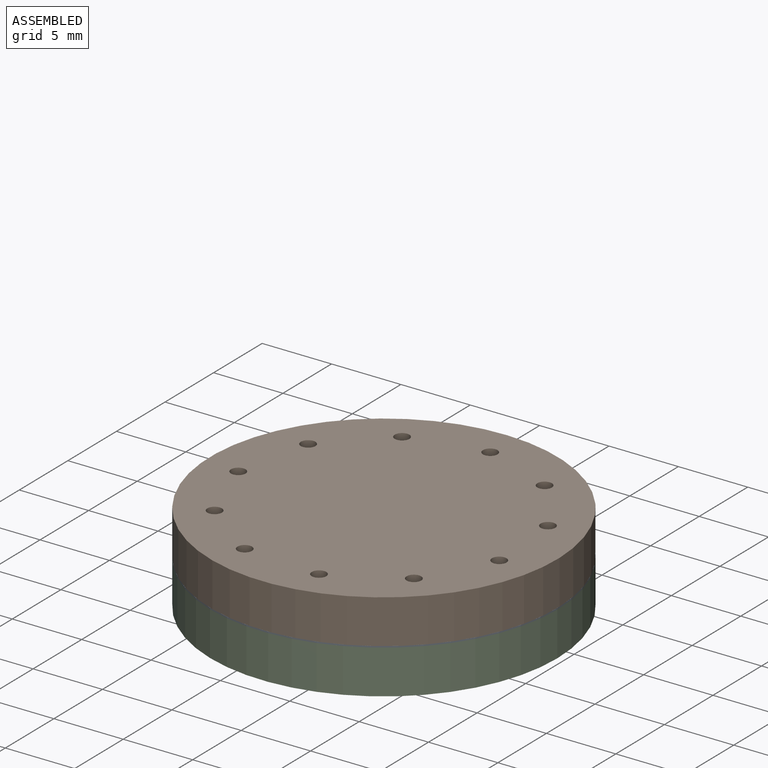
[diagram: assembled view]
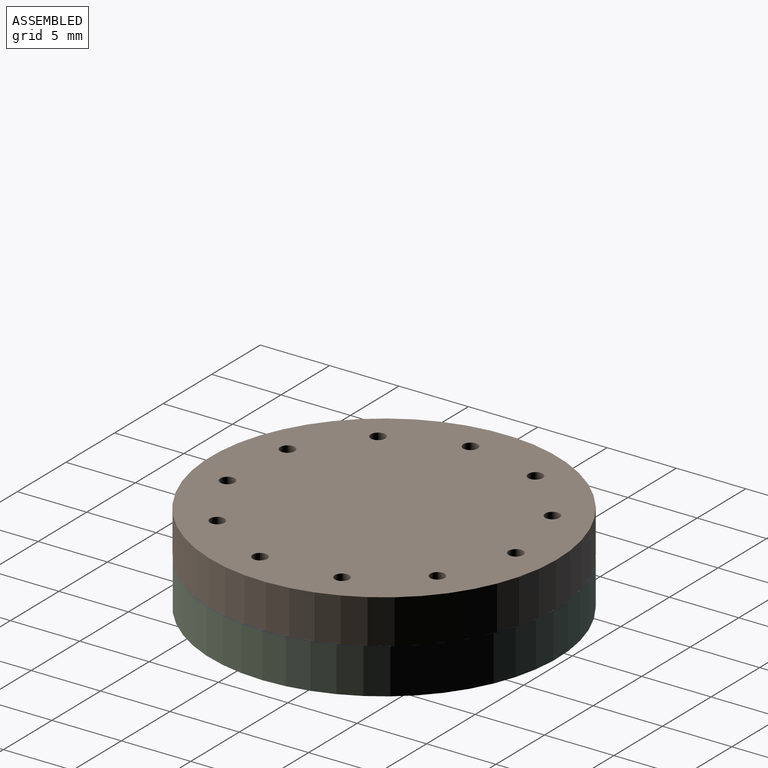
[diagram: assembled view, second angle]
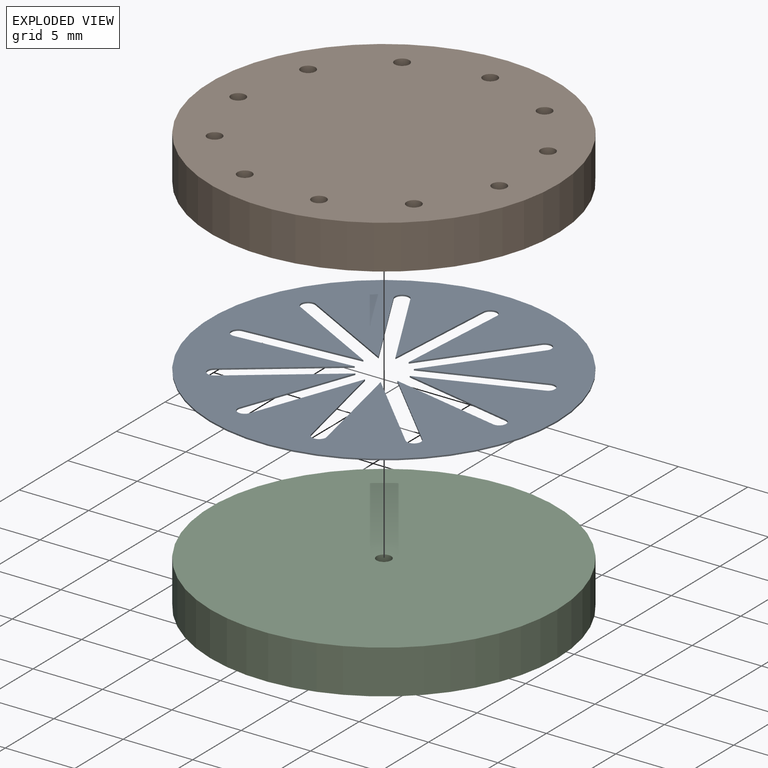
[diagram: exploded view]
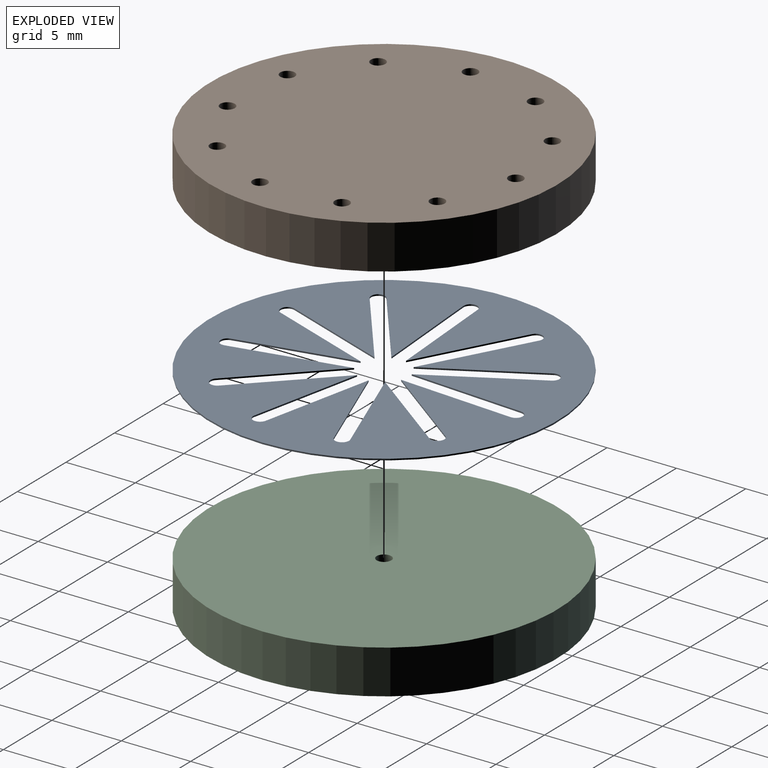
[diagram: exploded view, second angle]
ASSEMBLY  parts=3 mates=5
PART A: 36 faces, bbox 25x25x0.1 mm
  f0: plane 6.66x4.95mm, normal (0.8,0.6,0), area 0.8mm2, adj f1,f32,f34,f35
  f1: plane 8.28x0.56mm, normal (-1,-0.07,0), area 0.8mm2, adj f0,f2,f34,f35
  f2: cylinder r=0.5mm len=1mm, axis (0,0,-1), area 0.2mm2, adj f1,f3,f34,f35
  f3: plane 8.28x0.56mm, normal (1,0.07,0), area 0.8mm2, adj f2,f4,f34,f35
  f4: plane 7.27x4mm, normal (-0.88,0.48,0), area 0.8mm2, adj f3,f5,f34,f35
  f5: cylinder r=0.5mm len=0.94mm, axis (0,0,-1), area 0.2mm2, adj f4,f6,f34,f35
  f6: plane 7.27x4mm, normal (0.88,-0.48,0), area 0.8mm2, adj f5,f7,f34,f35
  f7: plane 7.3x3.95mm, normal (-0.48,0.88,0), area 0.8mm2, adj f6,f8,f34,f35
  f8: cylinder r=0.5mm len=0.94mm, axis (0,0,-1), area 0.2mm2, adj f7,f9,f34,f35
  f9: plane 7.3x3.95mm, normal (0.48,-0.88,0), area 0.8mm2, adj f8,f10,f34,f35
  f10: plane 8.27x0.62mm, normal (0.07,1,0), area 0.8mm2, adj f9,f11,f34,f35
  f11: cylinder r=0.5mm len=1mm, axis (0,0,-1), area 0.2mm2, adj f10,f12,f34,f35
  f12: plane 8.27x0.62mm, normal (-0.07,-1,0), area 0.8mm2, adj f11,f13,f34,f35
  f13: plane 6.62x5mm, normal (0.6,0.8,0), area 0.8mm2, adj f12,f14,f34,f35
  f14: cylinder r=0.5mm len=0.9mm, axis (0,0,-1), area 0.2mm2, adj f13,f15,f34,f35
  f15: plane 6.62x5mm, normal (-0.6,-0.8,0), area 0.8mm2, adj f14,f16,f34,f35
  f16: plane 7.78x2.87mm, normal (0.94,0.35,0), area 0.8mm2, adj f15,f17,f34,f35
  f17: cylinder r=0.5mm len=0.97mm, axis (0,0,-1), area 0.2mm2, adj f16,f18,f34,f35
  f18: plane 7.78x2.87mm, normal (-0.94,-0.35,0), area 0.8mm2, adj f17,f19,f34,f35
  f19: plane 8.1x1.79mm, normal (0.98,-0.22,0), area 0.8mm2, adj f18,f20,f34,f35
  f20: cylinder r=0.5mm len=0.99mm, axis (0,0,-1), area 0.2mm2, adj f19,f21,f34,f35
  f21: plane 8.1x1.79mm, normal (-0.98,0.22,0), area 0.8mm2, adj f20,f22,f34,f35
  f22: plane 5.89x5.85mm, normal (0.7,-0.71,0), area 0.8mm2, adj f21,f23,f34,f35
  f23: cylinder r=0.5mm len=0.86mm, axis (0,0,-1), area 0.2mm2, adj f22,f24,f34,f35
  f24: plane 5.89x5.85mm, normal (-0.7,0.71,0), area 0.8mm2, adj f23,f25,f34,f35
  f25: plane 8.11x1.74mm, normal (0.21,-0.98,0), area 0.8mm2, adj f24,f26,f34,f35
  f26: cylinder r=0.5mm len=0.99mm, axis (0,0,-1), area 0.2mm2, adj f25,f27,f34,f35
  f27: plane 8.11x1.74mm, normal (-0.21,0.98,0), area 0.8mm2, adj f26,f28,f34,f35
  f28: plane 7.76x2.93mm, normal (-0.35,-0.94,0), area 0.8mm2, adj f27,f29,f34,f35
  f29: cylinder r=0.5mm len=0.97mm, axis (0,0,-1), area 0.2mm2, adj f28,f30,f34,f35
  f30: plane 7.76x2.93mm, normal (0.35,0.94,0), area 0.8mm2, adj f29,f31,f34,f35
  f31: plane 6.66x4.95mm, normal (-0.8,-0.6,0), area 0.8mm2, adj f30,f32,f34,f35
  f32: cylinder r=0.5mm len=0.9mm, axis (0,0,-1), area 0.2mm2, adj f0,f31,f34,f35
  f33: cylinder r=12.5mm len=25mm, axis (0,0,-1), area 8mm2, adj f34,f35
  f34: plane 25x25mm, normal (0,0,1), area 385.9mm2, adj f0,f1,f2,f3,f4,f5,f6,f7
  f35: plane 25x25mm, normal (0,0,-1), area 385.9mm2, adj f0,f1,f2,f3,f4,f5,f6,f7
PART B: 14 faces, bbox 25x25x3.2 mm
  f0: cylinder r=0.53mm len=3.18mm, axis (0,0,-1), area 10.5mm2, adj f12,f13
  f1: cylinder r=0.53mm len=3.18mm, axis (0,0,-1), area 10.5mm2, adj f12,f13
  f2: cylinder r=0.53mm len=3.18mm, axis (0,0,-1), area 10.5mm2, adj f12,f13
  f3: cylinder r=0.53mm len=3.18mm, axis (0,0,-1), area 10.5mm2, adj f12,f13
  f4: cylinder r=0.53mm len=3.18mm, axis (0,0,-1), area 10.5mm2, adj f12,f13
  f5: cylinder r=0.53mm len=3.18mm, axis (0,0,-1), area 10.5mm2, adj f12,f13
  f6: cylinder r=0.53mm len=3.18mm, axis (0,0,-1), area 10.5mm2, adj f12,f13
  f7: cylinder r=0.53mm len=3.18mm, axis (0,0,-1), area 10.5mm2, adj f12,f13
  f8: cylinder r=0.53mm len=3.18mm, axis (0,0,-1), area 10.5mm2, adj f12,f13
  f9: cylinder r=0.53mm len=3.18mm, axis (0,0,-1), area 10.5mm2, adj f12,f13
  f10: cylinder r=0.53mm len=3.18mm, axis (0,0,-1), area 10.5mm2, adj f12,f13
  f11: cylinder r=12.5mm len=25mm, axis (0,0,-1), area 249.4mm2, adj f12,f13
  f12: plane 25x25mm, normal (0,0,1), area 481.3mm2, adj f0,f1,f2,f3,f4,f5,f6,f7
  f13: plane 25x25mm, normal (0,0,-1), area 481.3mm2, adj f0,f1,f2,f3,f4,f5,f6,f7
PART C: 4 faces, bbox 25x25x3.2 mm
  f0: cylinder r=0.53mm len=3.18mm, axis (0,0,-1), area 10.5mm2, adj f2,f3
  f1: cylinder r=12.5mm len=25mm, axis (0,0,-1), area 249.4mm2, adj f2,f3
  f2: plane 25x25mm, normal (0,0,1), area 490mm2, adj f0,f1
  f3: plane 25x25mm, normal (0,0,-1), area 490mm2, adj f0,f1
PLACE A rot(axis=(1,0,0),180deg) t=(49.89,-50.15,2.3)mm
PLACE B rot(axis=(0.92,0.38,0),180deg) t=(49.89,-50.15,5.48)mm
PLACE C t=(49.89,-50.15,-0.97)mm
MATE cylindrical A.f33 <-> C.f0  axis (0,0,1) through (49.89,-50.15,2.25)mm
MATE cylindrical B.f10 <-> A.f26  axis (0,0,1) through (59.67,-52.24,3.89)mm
MATE planar A.f33 <-> C.f0  axis (0,0,-1) through (49.89,-50.15,2.2)mm
MATE cylindrical B.f3 <-> A.f14  axis (0,0,1) through (41.9,-56.17,3.89)mm
MATE planar B.f11 <-> A.f33  axis (0,0,-1) through (49.89,-50.15,2.3)mm
